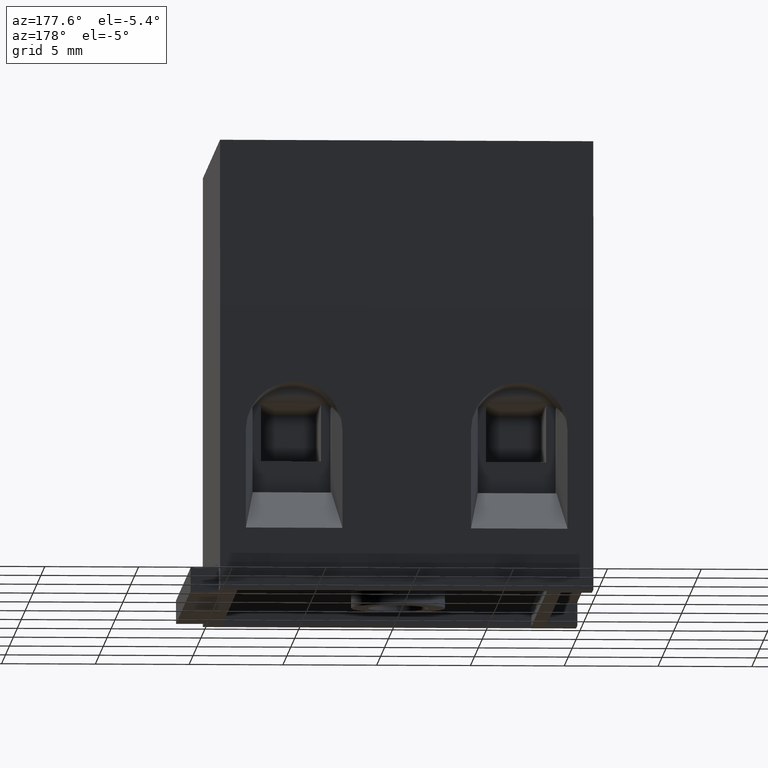
[diagram: clean part render]
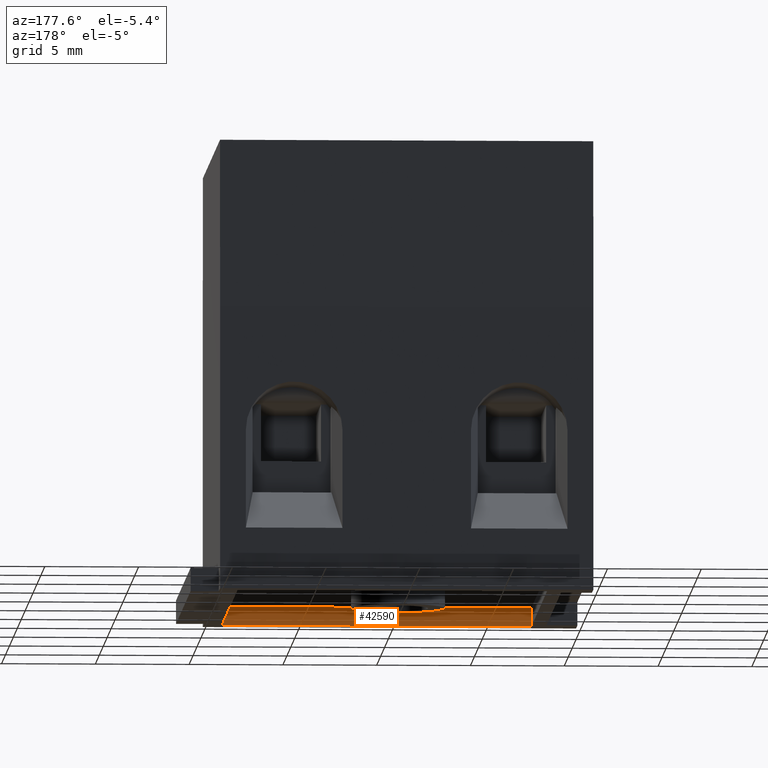
[diagram: same view with one face highlighted and labeled with its STEP entity id]
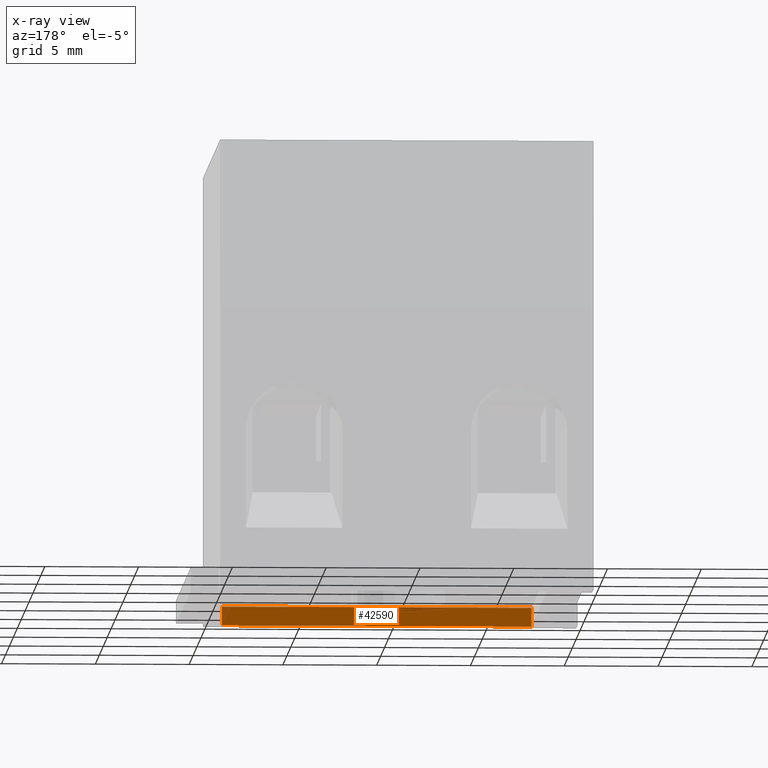
[diagram: x-ray of the same camera — body ghosted, the highlighted face saturated]
A machine part, auxiliary view. The second image highlights one B-rep face of the part: STEP entity #42590.
The next image is the same camera in x-ray: the body ghosted, the highlighted face saturated — about 8% of this face is hidden behind the body in this view.
In plain terms, the highlighted planar face has unit normal (0, 1, -0).
Its self-contained STEP definition (entity closure, byte-faithful):
#8890=CARTESIAN_POINT('',(39.3778950784308,0.156191000000002,
18.9761859215692));
#8900=VERTEX_POINT('',#8890);
#8930=CARTESIAN_POINT('',(39.3778950784308,0.156191000000002,19.95));
#8940=DIRECTION('',(4.16333634234434E-17,-3.08148791101958E-33,-1.));
#8950=VECTOR('',#8940,1.);
#8960=LINE('',#8930,#8950);
#8970=CARTESIAN_POINT('',(39.3778950784308,0.156191000000002,
2.47381407843086));
#8980=VERTEX_POINT('',#8970);
#8990=EDGE_CURVE('',#8900,#8980,#8960,.T.);
#41300=CARTESIAN_POINT('',(39.3778950784308,1.156191,18.9761859215692));
#41310=VERTEX_POINT('',#41300);
#41460=CARTESIAN_POINT('',(39.3778950784308,1.156191,2.47381407843086));
#41470=VERTEX_POINT('',#41460);
#41500=CARTESIAN_POINT('',(39.3778950784308,1.156191,-81.4345395361743))
;
#41510=DIRECTION('',(-4.16333634234434E-17,-1.3684555315672E-48,1.));
#41520=VECTOR('',#41510,1.);
#41530=LINE('',#41500,#41520);
#41540=EDGE_CURVE('',#41470,#41310,#41530,.T.);
#41830=CARTESIAN_POINT('',(39.3778950784308,0.156191000000003,
18.9761859215692));
#41840=DIRECTION('',(1.11022302462516E-16,1.,4.62223186652936E-33));
#41850=VECTOR('',#41840,1.);
#41860=LINE('',#41830,#41850);
#41870=EDGE_CURVE('',#8900,#41310,#41860,.T.);
#42290=CARTESIAN_POINT('',(39.3778950784308,0.156191000000003,
2.47381407843086));
#42300=DIRECTION('',(1.11022302462516E-16,1.,4.62223186652936E-33));
#42310=VECTOR('',#42300,1.);
#42320=LINE('',#42290,#42310);
#42330=EDGE_CURVE('',#8980,#41470,#42320,.T.);
#42480=CARTESIAN_POINT('',(39.3778950784308,0.156191000000003,
2.47381407843086));
#42490=DIRECTION('',(1.,-1.11022302462516E-16,4.16333634234434E-17));
#42500=DIRECTION('',(4.16333634234434E-17,1.3684555315672E-48,-1.));
#42510=AXIS2_PLACEMENT_3D('',#42480,#42490,#42500);
#42520=PLANE('',#42510);
#42530=ORIENTED_EDGE('',*,*,#41870,.F.);
#42540=ORIENTED_EDGE('',*,*,#41540,.T.);
#42550=ORIENTED_EDGE('',*,*,#42330,.T.);
#42560=ORIENTED_EDGE('',*,*,#8990,.T.);
#42570=EDGE_LOOP('',(#42560,#42550,#42540,#42530));
#42580=FACE_OUTER_BOUND('',#42570,.T.);
#42590=ADVANCED_FACE('',(#42580),#42520,.T.);